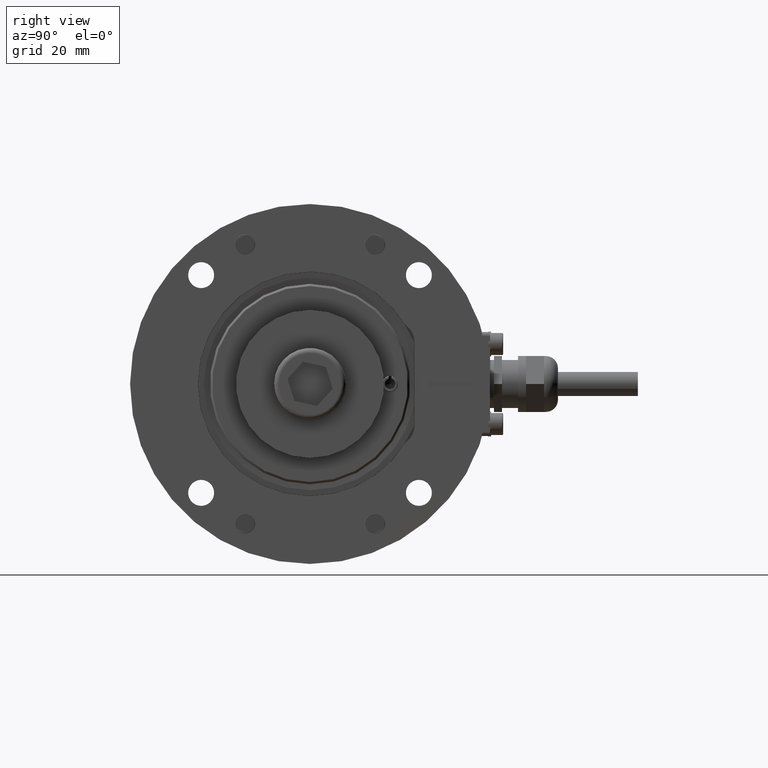
[diagram: clean part render]
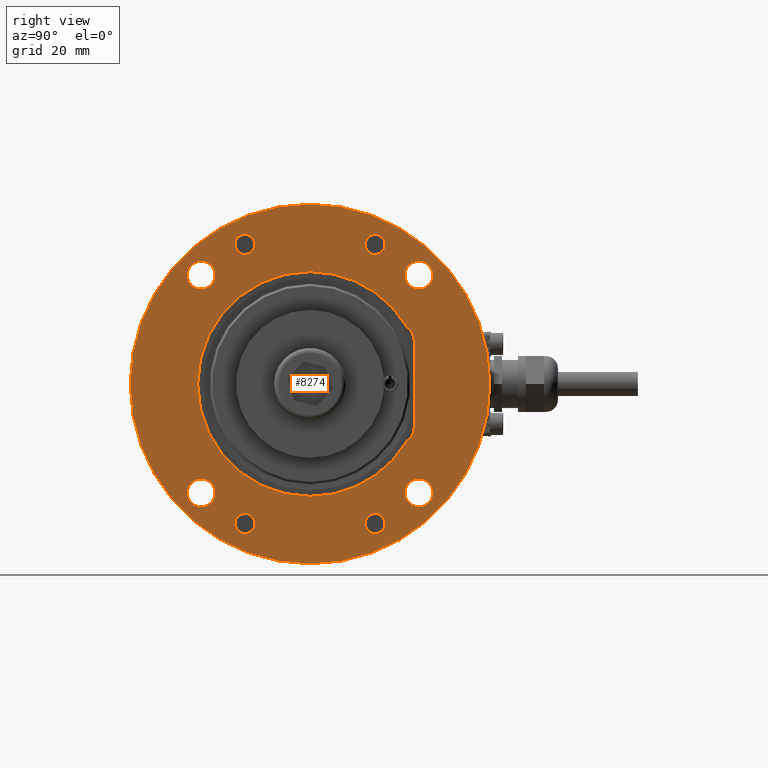
[diagram: same view with one face highlighted and labeled with its STEP entity id]
A machine part, right view. The second image highlights one B-rep face of the part: STEP entity #8274.
In plain terms, the highlighted planar face has unit normal (-1, 0, 0).
Its self-contained STEP definition (entity closure, byte-faithful):
#79 = CARTESIAN_POINT ( 'NONE',  ( -27.22361107568204375, 0.000000000000000000, -27.22361107568211125 ) ) ;
#153 = CARTESIAN_POINT ( 'NONE',  ( -16.27080307701695716, 0.000000000000000000, 34.89284980091100863 ) ) ;
#181 = DIRECTION ( 'NONE',  ( 0.000000000000000000, 1.000000000000000000, 0.000000000000000000 ) ) ;
#237 = DIRECTION ( 'NONE',  ( 0.000000000000000000, 0.000000000000000000, 1.000000000000000000 ) ) ;
#351 = DIRECTION ( 'NONE',  ( -0.000000000000000000, 1.000000000000000000, -0.000000000000000000 ) ) ;
#475 = CARTESIAN_POINT ( 'NONE',  ( 0.000000000000000000, 0.000000000000000000, 0.000000000000000000 ) ) ;
#602 = EDGE_CURVE ( 'NONE', #12997, #14852, #4535, .T. ) ;
#655 = CIRCLE ( 'NONE', #3183, 2.500000000000002220 ) ;
#659 = CARTESIAN_POINT ( 'NONE',  ( 40.10000000000000853, 0.000000000000000000, -0.5000000000000000000 ) ) ;
#908 = EDGE_CURVE ( 'NONE', #10741, #10454, #2738, .T. ) ;
#911 = DIRECTION ( 'NONE',  ( -0.000000000000000000, 1.000000000000000000, -0.000000000000000000 ) ) ;
#931 = ORIENTED_EDGE ( 'NONE', *, *, #1802, .F. ) ;
#1014 = CARTESIAN_POINT ( 'NONE',  ( -16.27080307701695716, 0.000000000000000000, 34.89284980091100863 ) ) ;
#1024 = ORIENTED_EDGE ( 'NONE', *, *, #6774, .T. ) ;
#1052 = FACE_BOUND ( 'NONE', #3140, .T. ) ;
#1062 = AXIS2_PLACEMENT_3D ( 'NONE', #11961, #13227, #2760 ) ;
#1087 = EDGE_CURVE ( 'NONE', #8483, #6756, #10109, .T. ) ;
#1128 = DIRECTION ( 'NONE',  ( 0.000000000000000000, 0.000000000000000000, 1.000000000000000000 ) ) ;
#1188 = VERTEX_POINT ( 'NONE', #6014 ) ;
#1375 = CARTESIAN_POINT ( 'NONE',  ( 16.27080307701695716, 0.000000000000000000, -34.89284980091100863 ) ) ;
#1407 = DIRECTION ( 'NONE',  ( -0.000000000000000000, 1.000000000000000000, -0.000000000000000000 ) ) ;
#1574 = EDGE_CURVE ( 'NONE', #2108, #6299, #12245, .T. ) ;
#1590 = ORIENTED_EDGE ( 'NONE', *, *, #2101, .F. ) ;
#1769 = CIRCLE ( 'NONE', #5668, 3.499999999999999556 ) ;
#1778 = CARTESIAN_POINT ( 'NONE',  ( 27.22361107568212191, 0.000000000000000000, -23.72361107568203309 ) ) ;
#1802 = EDGE_CURVE ( 'NONE', #11133, #2737, #7925, .T. ) ;
#1815 = DIRECTION ( 'NONE',  ( 0.000000000000000000, 0.000000000000000000, 1.000000000000000000 ) ) ;
#1843 = LINE ( 'NONE', #2633, #9068 ) ;
#1866 = CARTESIAN_POINT ( 'NONE',  ( 30.10000000000000497, 0.000000000000000000, 0.5000000000000000000 ) ) ;
#1994 = AXIS2_PLACEMENT_3D ( 'NONE', #3261, #9183, #7929 ) ;
#2085 = CIRCLE ( 'NONE', #1062, 3.499999999999999556 ) ;
#2101 = EDGE_CURVE ( 'NONE', #10060, #11133, #4114, .T. ) ;
#2108 = VERTEX_POINT ( 'NONE', #5544 ) ;
#2143 = ORIENTED_EDGE ( 'NONE', *, *, #13272, .T. ) ;
#2175 = DIRECTION ( 'NONE',  ( -1.000000000000000000, -0.000000000000000000, -0.000000000000000000 ) ) ;
#2192 = AXIS2_PLACEMENT_3D ( 'NONE', #153, #14030, #12955 ) ;
#2244 = CARTESIAN_POINT ( 'NONE',  ( 27.22361107568212191, 0.000000000000000000, -27.22361107568203309 ) ) ;
#2266 = EDGE_CURVE ( 'NONE', #10566, #11746, #1769, .T. ) ;
#2290 = CARTESIAN_POINT ( 'NONE',  ( 40.10000000000000853, 0.000000000000000000, 0.000000000000000000 ) ) ;
#2490 = CARTESIAN_POINT ( 'NONE',  ( 0.000000000000000000, 0.000000000000000000, 0.000000000000000000 ) ) ;
#2497 = FACE_BOUND ( 'NONE', #14499, .T. ) ;
#2536 = DIRECTION ( 'NONE',  ( 0.000000000000000000, 0.000000000000000000, 1.000000000000000000 ) ) ;
#2545 = EDGE_CURVE ( 'NONE', #1188, #6150, #7896, .T. ) ;
#2565 = DIRECTION ( 'NONE',  ( 0.000000000000000000, 1.000000000000000000, 0.000000000000000000 ) ) ;
#2633 = CARTESIAN_POINT ( 'NONE',  ( 30.10000000000000497, 0.000000000000000000, -0.5000000000000000000 ) ) ;
#2652 = DIRECTION ( 'NONE',  ( -0.000000000000000000, 1.000000000000000000, -0.000000000000000000 ) ) ;
#2713 = ORIENTED_EDGE ( 'NONE', *, *, #7826, .T. ) ;
#2737 = VERTEX_POINT ( 'NONE', #10317 ) ;
#2738 = CIRCLE ( 'NONE', #4206, 28.10000000000000497 ) ;
#2760 = DIRECTION ( 'NONE',  ( 0.000000000000000000, 0.000000000000000000, 1.000000000000000000 ) ) ;
#3140 = EDGE_LOOP ( 'NONE', ( #9320, #11099 ) ) ;
#3183 = AXIS2_PLACEMENT_3D ( 'NONE', #7656, #10982, #1815 ) ;
#3193 = VERTEX_POINT ( 'NONE', #1778 ) ;
#3239 = CIRCLE ( 'NONE', #6995, 3.499999999999999556 ) ;
#3244 = DIRECTION ( 'NONE',  ( 0.000000000000000000, 0.000000000000000000, -1.000000000000000000 ) ) ;
#3249 = ORIENTED_EDGE ( 'NONE', *, *, #9002, .T. ) ;
#3261 = CARTESIAN_POINT ( 'NONE',  ( 0.000000000000000000, 0.000000000000000000, 0.000000000000000000 ) ) ;
#3356 = VERTEX_POINT ( 'NONE', #4240 ) ;
#3487 = ORIENTED_EDGE ( 'NONE', *, *, #5003, .T. ) ;
#3490 = EDGE_CURVE ( 'NONE', #7845, #9777, #10408, .T. ) ;
#3520 = DIRECTION ( 'NONE',  ( 0.000000000000000000, 0.000000000000000000, 1.000000000000000000 ) ) ;
#3535 = CARTESIAN_POINT ( 'NONE',  ( 16.27080307701696427, 0.000000000000000000, 32.39284980091100863 ) ) ;
#3661 = AXIS2_PLACEMENT_3D ( 'NONE', #79, #8043, #3520 ) ;
#3742 = EDGE_LOOP ( 'NONE', ( #12744, #3487, #3249, #4424, #5154, #9053 ) ) ;
#3752 = EDGE_CURVE ( 'NONE', #14852, #12997, #655, .T. ) ;
#3760 = ORIENTED_EDGE ( 'NONE', *, *, #1574, .T. ) ;
#3796 = CARTESIAN_POINT ( 'NONE',  ( 27.22361107568212191, 0.000000000000000000, -30.72361107568203309 ) ) ;
#3882 = EDGE_CURVE ( 'NONE', #6299, #2108, #12190, .T. ) ;
#4049 = EDGE_CURVE ( 'NONE', #4349, #13872, #4798, .T. ) ;
#4100 = FACE_BOUND ( 'NONE', #7160, .T. ) ;
#4114 = LINE ( 'NONE', #4382, #12782 ) ;
#4140 = ORIENTED_EDGE ( 'NONE', *, *, #3752, .T. ) ;
#4206 = AXIS2_PLACEMENT_3D ( 'NONE', #13010, #7273, #7216 ) ;
#4230 = ORIENTED_EDGE ( 'NONE', *, *, #602, .T. ) ;
#4240 = CARTESIAN_POINT ( 'NONE',  ( 0.000000000000000000, 0.000000000000000000, -44.95000000000000284 ) ) ;
#4246 = CARTESIAN_POINT ( 'NONE',  ( 16.27080307701695716, 0.000000000000000000, -37.39284980091100863 ) ) ;
#4343 = AXIS2_PLACEMENT_3D ( 'NONE', #4721, #2565, #9359 ) ;
#4349 = VERTEX_POINT ( 'NONE', #9570 ) ;
#4377 = CARTESIAN_POINT ( 'NONE',  ( 40.10000000000000853, 0.000000000000000000, 0.5000000000000000000 ) ) ;
#4382 = CARTESIAN_POINT ( 'NONE',  ( 30.10000000000000497, 0.000000000000000000, 0.5000000000000000000 ) ) ;
#4424 = ORIENTED_EDGE ( 'NONE', *, *, #908, .T. ) ;
#4443 = CIRCLE ( 'NONE', #14073, 2.500000000000002220 ) ;
#4479 = EDGE_CURVE ( 'NONE', #13872, #4349, #10743, .T. ) ;
#4535 = CIRCLE ( 'NONE', #12105, 2.500000000000002220 ) ;
#4650 = EDGE_CURVE ( 'NONE', #9213, #3193, #2085, .T. ) ;
#4721 = CARTESIAN_POINT ( 'NONE',  ( 21.09999999999999432, 0.000000000000000000, -10.50000000000000000 ) ) ;
#4739 = EDGE_LOOP ( 'NONE', ( #5832, #5193 ) ) ;
#4798 = CIRCLE ( 'NONE', #3661, 3.499999999999999556 ) ;
#4817 = CARTESIAN_POINT ( 'NONE',  ( -27.22361107568204375, 0.000000000000000000, -27.22361107568211125 ) ) ;
#4866 = DIRECTION ( 'NONE',  ( 0.000000000000000000, 0.000000000000000000, 1.000000000000000000 ) ) ;
#5003 = EDGE_CURVE ( 'NONE', #9077, #13952, #5677, .T. ) ;
#5113 = EDGE_CURVE ( 'NONE', #9777, #7845, #9643, .T. ) ;
#5154 = ORIENTED_EDGE ( 'NONE', *, *, #13532, .T. ) ;
#5173 = CIRCLE ( 'NONE', #8746, 44.95000000000000284 ) ;
#5193 = ORIENTED_EDGE ( 'NONE', *, *, #4479, .T. ) ;
#5243 = ORIENTED_EDGE ( 'NONE', *, *, #14411, .F. ) ;
#5252 = ORIENTED_EDGE ( 'NONE', *, *, #3882, .T. ) ;
#5536 = DIRECTION ( 'NONE',  ( 0.000000000000000000, -0.000000000000000000, 1.000000000000000000 ) ) ;
#5544 = CARTESIAN_POINT ( 'NONE',  ( -16.27080307701695716, 0.000000000000000000, 32.39284980091100863 ) ) ;
#5551 = DIRECTION ( 'NONE',  ( 0.000000000000000000, -1.000000000000000000, 0.000000000000000000 ) ) ;
#5668 = AXIS2_PLACEMENT_3D ( 'NONE', #9425, #7142, #237 ) ;
#5677 = CIRCLE ( 'NONE', #6584, 28.10000000000000497 ) ;
#5681 = CARTESIAN_POINT ( 'NONE',  ( 26.10000000000000497, 0.000000000000000000, -10.50000000000000000 ) ) ;
#5767 = CARTESIAN_POINT ( 'NONE',  ( 24.04563333253369706, 0.000000000000000000, -14.54020349367039344 ) ) ;
#5832 = ORIENTED_EDGE ( 'NONE', *, *, #4049, .T. ) ;
#5951 = CARTESIAN_POINT ( 'NONE',  ( -27.22361107568211480, 0.000000000000000000, 27.22361107568204019 ) ) ;
#5981 = CARTESIAN_POINT ( 'NONE',  ( 16.27080307701696427, 0.000000000000000000, 34.89284980091100863 ) ) ;
#6014 = CARTESIAN_POINT ( 'NONE',  ( 26.10000000000000497, 0.000000000000000000, 10.50000000000000000 ) ) ;
#6150 = VERTEX_POINT ( 'NONE', #5681 ) ;
#6279 = FACE_OUTER_BOUND ( 'NONE', #13671, .T. ) ;
#6299 = VERTEX_POINT ( 'NONE', #11607 ) ;
#6314 = AXIS2_PLACEMENT_3D ( 'NONE', #6671, #9038, #7825 ) ;
#6324 = CARTESIAN_POINT ( 'NONE',  ( -27.22361107568211480, 0.000000000000000000, 23.72361107568204019 ) ) ;
#6493 = CARTESIAN_POINT ( 'NONE',  ( -16.27080307701695716, 0.000000000000000000, -37.39284980091100863 ) ) ;
#6556 = AXIS2_PLACEMENT_3D ( 'NONE', #2290, #5551, #13624 ) ;
#6584 = AXIS2_PLACEMENT_3D ( 'NONE', #2490, #7060, #6869 ) ;
#6647 = CARTESIAN_POINT ( 'NONE',  ( 0.000000000000000000, 0.000000000000000000, 0.000000000000000000 ) ) ;
#6653 = CIRCLE ( 'NONE', #13964, 3.499999999999999556 ) ;
#6671 = CARTESIAN_POINT ( 'NONE',  ( 16.27080307701696427, 0.000000000000000000, 34.89284980091100863 ) ) ;
#6756 = VERTEX_POINT ( 'NONE', #4246 ) ;
#6774 = EDGE_CURVE ( 'NONE', #9811, #7808, #7755, .T. ) ;
#6849 = DIRECTION ( 'NONE',  ( 0.000000000000000000, 0.000000000000000000, 1.000000000000000000 ) ) ;
#6869 = DIRECTION ( 'NONE',  ( 0.000000000000000000, 0.000000000000000000, 1.000000000000000000 ) ) ;
#6920 = ORIENTED_EDGE ( 'NONE', *, *, #3490, .T. ) ;
#6995 = AXIS2_PLACEMENT_3D ( 'NONE', #5951, #11830, #7105 ) ;
#7060 = DIRECTION ( 'NONE',  ( 0.000000000000000000, 1.000000000000000000, 0.000000000000000000 ) ) ;
#7105 = DIRECTION ( 'NONE',  ( 0.000000000000000000, 0.000000000000000000, 1.000000000000000000 ) ) ;
#7142 = DIRECTION ( 'NONE',  ( -0.000000000000000000, 1.000000000000000000, -0.000000000000000000 ) ) ;
#7160 = EDGE_LOOP ( 'NONE', ( #5252, #3760 ) ) ;
#7198 = DIRECTION ( 'NONE',  ( -0.000000000000000000, 1.000000000000000000, -0.000000000000000000 ) ) ;
#7216 = DIRECTION ( 'NONE',  ( 0.000000000000000000, 0.000000000000000000, 1.000000000000000000 ) ) ;
#7273 = DIRECTION ( 'NONE',  ( 0.000000000000000000, 1.000000000000000000, 0.000000000000000000 ) ) ;
#7296 = VERTEX_POINT ( 'NONE', #659 ) ;
#7303 = DIRECTION ( 'NONE',  ( 1.000000000000000000, 0.000000000000000000, 0.000000000000000000 ) ) ;
#7412 = CARTESIAN_POINT ( 'NONE',  ( 30.10000000000000497, 0.000000000000000000, 0.000000000000000000 ) ) ;
#7565 = AXIS2_PLACEMENT_3D ( 'NONE', #6647, #7901, #5536 ) ;
#7636 = AXIS2_PLACEMENT_3D ( 'NONE', #4817, #13029, #4866 ) ;
#7656 = CARTESIAN_POINT ( 'NONE',  ( -16.27080307701695716, 0.000000000000000000, -34.89284980091100863 ) ) ;
#7735 = EDGE_CURVE ( 'NONE', #3193, #9213, #6653, .T. ) ;
#7755 = CIRCLE ( 'NONE', #6314, 2.500000000000002220 ) ;
#7808 = VERTEX_POINT ( 'NONE', #11583 ) ;
#7825 = DIRECTION ( 'NONE',  ( 0.000000000000000000, 0.000000000000000000, 1.000000000000000000 ) ) ;
#7826 = EDGE_CURVE ( 'NONE', #11746, #10566, #3239, .T. ) ;
#7845 = VERTEX_POINT ( 'NONE', #9328 ) ;
#7896 = LINE ( 'NONE', #13341, #10607 ) ;
#7901 = DIRECTION ( 'NONE',  ( 0.000000000000000000, 1.000000000000000000, 0.000000000000000000 ) ) ;
#7925 = CIRCLE ( 'NONE', #8264, 0.5000000000000000000 ) ;
#7929 = DIRECTION ( 'NONE',  ( 0.000000000000000000, 0.000000000000000000, 1.000000000000000000 ) ) ;
#8043 = DIRECTION ( 'NONE',  ( -0.000000000000000000, 1.000000000000000000, -0.000000000000000000 ) ) ;
#8154 = AXIS2_PLACEMENT_3D ( 'NONE', #10361, #2652, #8430 ) ;
#8264 = AXIS2_PLACEMENT_3D ( 'NONE', #7412, #14422, #13159 ) ;
#8274 = ADVANCED_FACE ( 'NONE', ( #2497, #4100, #10961, #1052, #12405, #10061, #9342, #12937, #11321, #6279, #14035 ), #11230, .F. ) ;
#8430 = DIRECTION ( 'NONE',  ( 0.000000000000000000, 0.000000000000000000, 1.000000000000000000 ) ) ;
#8483 = VERTEX_POINT ( 'NONE', #13040 ) ;
#8502 = CIRCLE ( 'NONE', #13534, 5.000000000000007105 ) ;
#8532 = EDGE_CURVE ( 'NONE', #9892, #3356, #5173, .T. ) ;
#8746 = AXIS2_PLACEMENT_3D ( 'NONE', #9520, #181, #10621 ) ;
#9002 = EDGE_CURVE ( 'NONE', #13952, #10741, #10048, .T. ) ;
#9038 = DIRECTION ( 'NONE',  ( -0.000000000000000000, 1.000000000000000000, -0.000000000000000000 ) ) ;
#9053 = ORIENTED_EDGE ( 'NONE', *, *, #2545, .T. ) ;
#9068 = VECTOR ( 'NONE', #7303, 1000.000000000000000 ) ;
#9077 = VERTEX_POINT ( 'NONE', #5767 ) ;
#9183 = DIRECTION ( 'NONE',  ( 0.000000000000000000, 1.000000000000000000, 0.000000000000000000 ) ) ;
#9213 = VERTEX_POINT ( 'NONE', #3796 ) ;
#9320 = ORIENTED_EDGE ( 'NONE', *, *, #1087, .T. ) ;
#9328 = CARTESIAN_POINT ( 'NONE',  ( 27.22361107568203664, 0.000000000000000000, 30.72361107568211835 ) ) ;
#9342 = FACE_BOUND ( 'NONE', #10467, .T. ) ;
#9359 = DIRECTION ( 'NONE',  ( 0.000000000000000000, 0.000000000000000000, 1.000000000000000000 ) ) ;
#9425 = CARTESIAN_POINT ( 'NONE',  ( -27.22361107568211480, 0.000000000000000000, 27.22361107568204019 ) ) ;
#9431 = ORIENTED_EDGE ( 'NONE', *, *, #7735, .T. ) ;
#9442 = CARTESIAN_POINT ( 'NONE',  ( 27.22361107568203664, 0.000000000000000000, 27.22361107568211835 ) ) ;
#9466 = DIRECTION ( 'NONE',  ( 0.000000000000000000, 0.000000000000000000, 1.000000000000000000 ) ) ;
#9520 = CARTESIAN_POINT ( 'NONE',  ( 0.000000000000000000, 0.000000000000000000, 0.000000000000000000 ) ) ;
#9570 = CARTESIAN_POINT ( 'NONE',  ( -27.22361107568204375, 0.000000000000000000, -23.72361107568211125 ) ) ;
#9643 = CIRCLE ( 'NONE', #10641, 3.499999999999999556 ) ;
#9777 = VERTEX_POINT ( 'NONE', #10393 ) ;
#9786 = EDGE_CURVE ( 'NONE', #6756, #8483, #4443, .T. ) ;
#9797 = DIRECTION ( 'NONE',  ( 0.000000000000000000, 1.000000000000000000, 0.000000000000000000 ) ) ;
#9811 = VERTEX_POINT ( 'NONE', #3535 ) ;
#9857 = DIRECTION ( 'NONE',  ( -0.000000000000000000, -0.000000000000000000, -1.000000000000000000 ) ) ;
#9892 = VERTEX_POINT ( 'NONE', #11782 ) ;
#9934 = ORIENTED_EDGE ( 'NONE', *, *, #5113, .T. ) ;
#10048 = CIRCLE ( 'NONE', #1994, 28.10000000000000497 ) ;
#10060 = VERTEX_POINT ( 'NONE', #4377 ) ;
#10061 = FACE_BOUND ( 'NONE', #4739, .T. ) ;
#10109 = CIRCLE ( 'NONE', #8154, 2.500000000000002220 ) ;
#10317 = CARTESIAN_POINT ( 'NONE',  ( 30.10000000000000497, 0.000000000000000000, -0.5000000000000000000 ) ) ;
#10361 = CARTESIAN_POINT ( 'NONE',  ( 16.27080307701695716, 0.000000000000000000, -34.89284980091100863 ) ) ;
#10393 = CARTESIAN_POINT ( 'NONE',  ( 27.22361107568203664, 0.000000000000000000, 23.72361107568211835 ) ) ;
#10408 = CIRCLE ( 'NONE', #14751, 3.499999999999999556 ) ;
#10454 = VERTEX_POINT ( 'NONE', #13271 ) ;
#10467 = EDGE_LOOP ( 'NONE', ( #9431, #13638 ) ) ;
#10566 = VERTEX_POINT ( 'NONE', #12051 ) ;
#10607 = VECTOR ( 'NONE', #9857, 1000.000000000000000 ) ;
#10621 = DIRECTION ( 'NONE',  ( 0.000000000000000000, 0.000000000000000000, 1.000000000000000000 ) ) ;
#10641 = AXIS2_PLACEMENT_3D ( 'NONE', #12758, #11835, #12903 ) ;
#10741 = VERTEX_POINT ( 'NONE', #12506 ) ;
#10743 = CIRCLE ( 'NONE', #7636, 3.499999999999999556 ) ;
#10961 = FACE_BOUND ( 'NONE', #14336, .T. ) ;
#10982 = DIRECTION ( 'NONE',  ( -0.000000000000000000, 1.000000000000000000, -0.000000000000000000 ) ) ;
#11099 = ORIENTED_EDGE ( 'NONE', *, *, #9786, .T. ) ;
#11133 = VERTEX_POINT ( 'NONE', #1866 ) ;
#11230 = PLANE ( 'NONE',  #7565 ) ;
#11246 = CARTESIAN_POINT ( 'NONE',  ( 21.09999999999999432, 0.000000000000000000, 10.50000000000000000 ) ) ;
#11321 = FACE_BOUND ( 'NONE', #11332, .T. ) ;
#11332 = EDGE_LOOP ( 'NONE', ( #6920, #9934 ) ) ;
#11557 = CIRCLE ( 'NONE', #4343, 5.000000000000007105 ) ;
#11570 = AXIS2_PLACEMENT_3D ( 'NONE', #5981, #1407, #9466 ) ;
#11579 = DIRECTION ( 'NONE',  ( 0.000000000000000000, 0.000000000000000000, 1.000000000000000000 ) ) ;
#11583 = CARTESIAN_POINT ( 'NONE',  ( 16.27080307701696427, 0.000000000000000000, 37.39284980091100863 ) ) ;
#11607 = CARTESIAN_POINT ( 'NONE',  ( -16.27080307701695716, 0.000000000000000000, 37.39284980091100863 ) ) ;
#11742 = CARTESIAN_POINT ( 'NONE',  ( -16.27080307701695716, 0.000000000000000000, -32.39284980091100863 ) ) ;
#11746 = VERTEX_POINT ( 'NONE', #6324 ) ;
#11782 = CARTESIAN_POINT ( 'NONE',  ( 5.504787362167352483E-15, 0.000000000000000000, 44.95000000000000284 ) ) ;
#11830 = DIRECTION ( 'NONE',  ( -0.000000000000000000, 1.000000000000000000, -0.000000000000000000 ) ) ;
#11835 = DIRECTION ( 'NONE',  ( -0.000000000000000000, 1.000000000000000000, -0.000000000000000000 ) ) ;
#11961 = CARTESIAN_POINT ( 'NONE',  ( 27.22361107568212191, 0.000000000000000000, -27.22361107568203309 ) ) ;
#12051 = CARTESIAN_POINT ( 'NONE',  ( -27.22361107568211480, 0.000000000000000000, 30.72361107568203664 ) ) ;
#12105 = AXIS2_PLACEMENT_3D ( 'NONE', #12279, #14598, #14878 ) ;
#12190 = CIRCLE ( 'NONE', #12730, 2.500000000000002220 ) ;
#12245 = CIRCLE ( 'NONE', #2192, 2.500000000000002220 ) ;
#12275 = CARTESIAN_POINT ( 'NONE',  ( -27.22361107568204375, 0.000000000000000000, -30.72361107568211125 ) ) ;
#12279 = CARTESIAN_POINT ( 'NONE',  ( -16.27080307701695716, 0.000000000000000000, -34.89284980091100863 ) ) ;
#12405 = FACE_BOUND ( 'NONE', #12786, .T. ) ;
#12433 = ORIENTED_EDGE ( 'NONE', *, *, #12475, .F. ) ;
#12452 = DIRECTION ( 'NONE',  ( 0.000000000000000000, 1.000000000000000000, -0.000000000000000000 ) ) ;
#12475 = EDGE_CURVE ( 'NONE', #7296, #10060, #13013, .T. ) ;
#12506 = CARTESIAN_POINT ( 'NONE',  ( 3.441257505604062239E-15, 0.000000000000000000, 28.10000000000000497 ) ) ;
#12730 = AXIS2_PLACEMENT_3D ( 'NONE', #1014, #911, #6849 ) ;
#12744 = ORIENTED_EDGE ( 'NONE', *, *, #13284, .T. ) ;
#12758 = CARTESIAN_POINT ( 'NONE',  ( 27.22361107568203664, 0.000000000000000000, 27.22361107568211835 ) ) ;
#12782 = VECTOR ( 'NONE', #2175, 1000.000000000000000 ) ;
#12786 = EDGE_LOOP ( 'NONE', ( #4140, #4230 ) ) ;
#12788 = EDGE_CURVE ( 'NONE', #2737, #7296, #1843, .T. ) ;
#12903 = DIRECTION ( 'NONE',  ( 0.000000000000000000, 0.000000000000000000, 1.000000000000000000 ) ) ;
#12937 = FACE_BOUND ( 'NONE', #14477, .T. ) ;
#12955 = DIRECTION ( 'NONE',  ( 0.000000000000000000, 0.000000000000000000, 1.000000000000000000 ) ) ;
#12997 = VERTEX_POINT ( 'NONE', #6493 ) ;
#13010 = CARTESIAN_POINT ( 'NONE',  ( 0.000000000000000000, 0.000000000000000000, 0.000000000000000000 ) ) ;
#13013 = CIRCLE ( 'NONE', #6556, 0.5000000000000000000 ) ;
#13029 = DIRECTION ( 'NONE',  ( -0.000000000000000000, 1.000000000000000000, -0.000000000000000000 ) ) ;
#13040 = CARTESIAN_POINT ( 'NONE',  ( 16.27080307701695716, 0.000000000000000000, -32.39284980091100863 ) ) ;
#13159 = DIRECTION ( 'NONE',  ( 0.000000000000000000, 0.000000000000000000, -1.000000000000000000 ) ) ;
#13171 = DIRECTION ( 'NONE',  ( 0.000000000000000000, 0.000000000000000000, 1.000000000000000000 ) ) ;
#13208 = ORIENTED_EDGE ( 'NONE', *, *, #8532, .F. ) ;
#13227 = DIRECTION ( 'NONE',  ( -0.000000000000000000, 1.000000000000000000, -0.000000000000000000 ) ) ;
#13271 = CARTESIAN_POINT ( 'NONE',  ( 24.04563333253369706, 0.000000000000000000, 14.54020349367039344 ) ) ;
#13272 = EDGE_CURVE ( 'NONE', #7808, #9811, #13561, .T. ) ;
#13284 = EDGE_CURVE ( 'NONE', #6150, #9077, #11557, .T. ) ;
#13341 = CARTESIAN_POINT ( 'NONE',  ( 26.10000000000000497, 0.000000000000000000, -10.50000000000000000 ) ) ;
#13532 = EDGE_CURVE ( 'NONE', #10454, #1188, #8502, .T. ) ;
#13534 = AXIS2_PLACEMENT_3D ( 'NONE', #11246, #12452, #3244 ) ;
#13561 = CIRCLE ( 'NONE', #11570, 2.500000000000002220 ) ;
#13624 = DIRECTION ( 'NONE',  ( 0.000000000000000000, 0.000000000000000000, -1.000000000000000000 ) ) ;
#13638 = ORIENTED_EDGE ( 'NONE', *, *, #4650, .T. ) ;
#13671 = EDGE_LOOP ( 'NONE', ( #5243, #13208 ) ) ;
#13828 = DIRECTION ( 'NONE',  ( -0.000000000000000000, 1.000000000000000000, -0.000000000000000000 ) ) ;
#13872 = VERTEX_POINT ( 'NONE', #12275 ) ;
#13902 = ORIENTED_EDGE ( 'NONE', *, *, #12788, .F. ) ;
#13952 = VERTEX_POINT ( 'NONE', #14844 ) ;
#13964 = AXIS2_PLACEMENT_3D ( 'NONE', #2244, #13828, #1128 ) ;
#14030 = DIRECTION ( 'NONE',  ( -0.000000000000000000, 1.000000000000000000, -0.000000000000000000 ) ) ;
#14035 = FACE_BOUND ( 'NONE', #3742, .T. ) ;
#14073 = AXIS2_PLACEMENT_3D ( 'NONE', #1375, #7198, #11579 ) ;
#14336 = EDGE_LOOP ( 'NONE', ( #2143, #1024 ) ) ;
#14387 = ORIENTED_EDGE ( 'NONE', *, *, #2266, .T. ) ;
#14411 = EDGE_CURVE ( 'NONE', #3356, #9892, #14941, .T. ) ;
#14422 = DIRECTION ( 'NONE',  ( 0.000000000000000000, -1.000000000000000000, 0.000000000000000000 ) ) ;
#14477 = EDGE_LOOP ( 'NONE', ( #14387, #2713 ) ) ;
#14499 = EDGE_LOOP ( 'NONE', ( #13902, #931, #1590, #12433 ) ) ;
#14598 = DIRECTION ( 'NONE',  ( -0.000000000000000000, 1.000000000000000000, -0.000000000000000000 ) ) ;
#14751 = AXIS2_PLACEMENT_3D ( 'NONE', #9442, #351, #2536 ) ;
#14777 = AXIS2_PLACEMENT_3D ( 'NONE', #475, #9797, #13171 ) ;
#14844 = CARTESIAN_POINT ( 'NONE',  ( 0.000000000000000000, 0.000000000000000000, -28.10000000000000497 ) ) ;
#14852 = VERTEX_POINT ( 'NONE', #11742 ) ;
#14878 = DIRECTION ( 'NONE',  ( 0.000000000000000000, 0.000000000000000000, 1.000000000000000000 ) ) ;
#14941 = CIRCLE ( 'NONE', #14777, 44.95000000000000284 ) ;